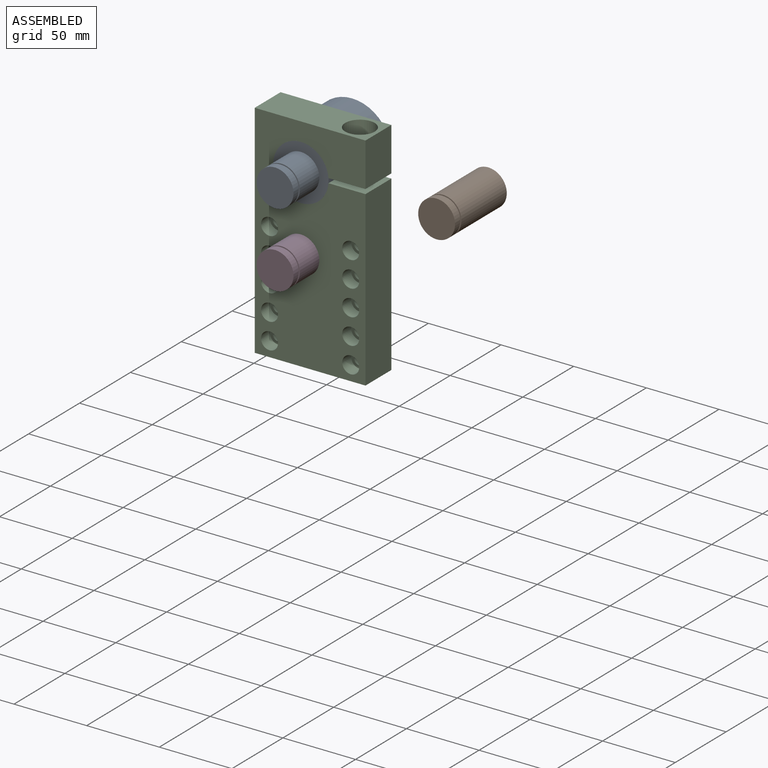
[diagram: assembled view]
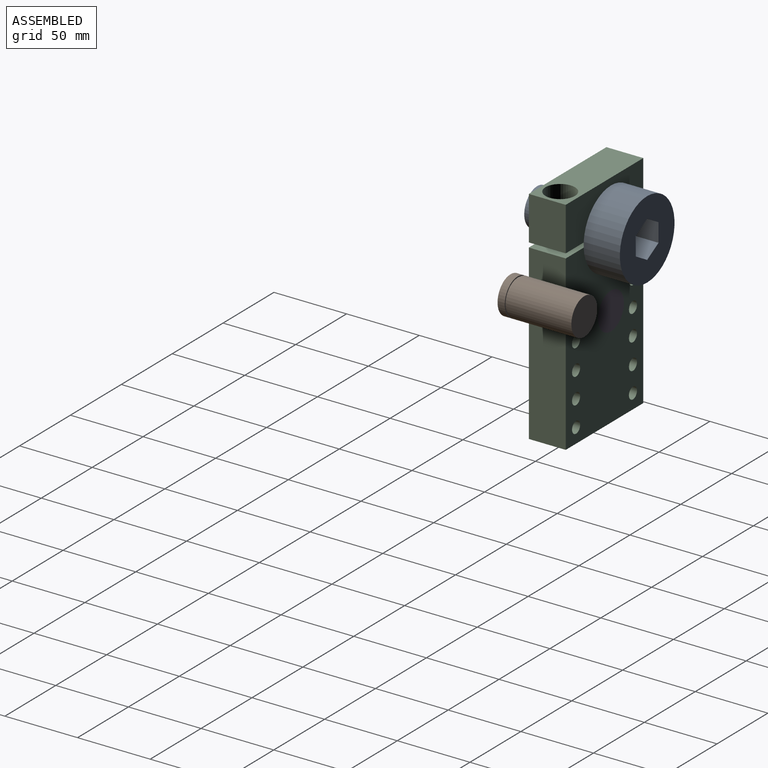
[diagram: assembled view, second angle]
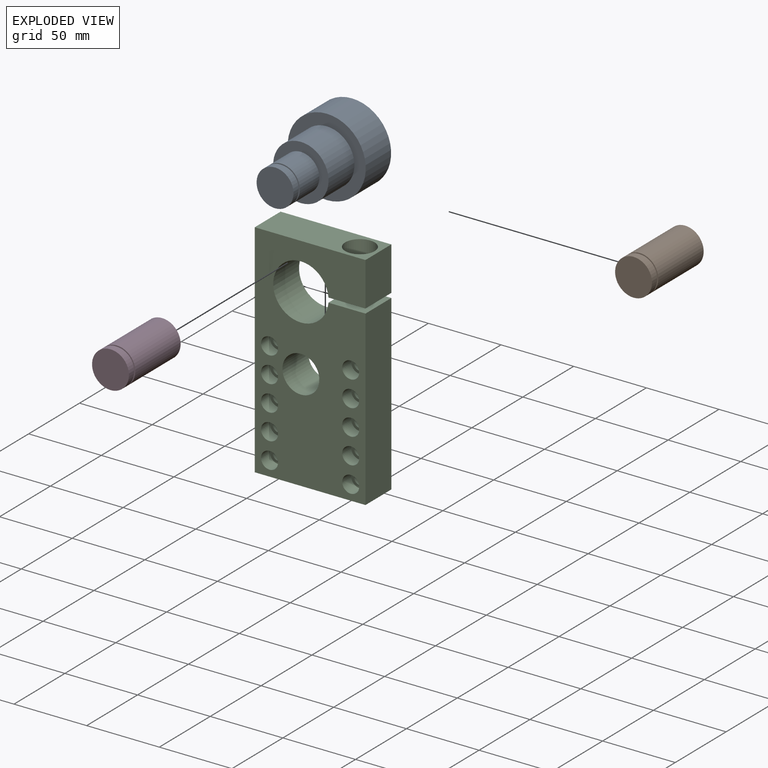
[diagram: exploded view]
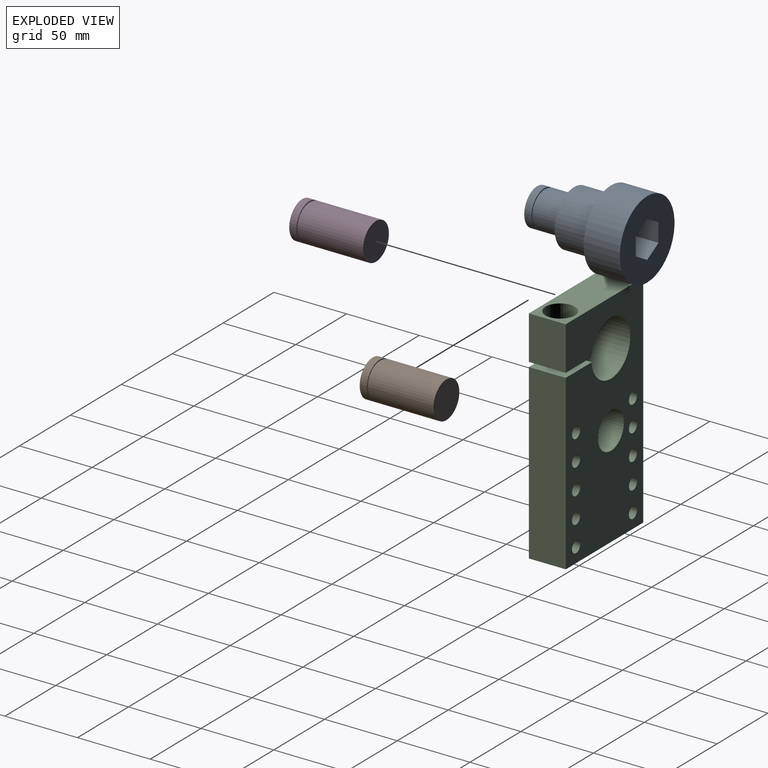
[diagram: exploded view, second angle]
ASSEMBLY  parts=3 mates=2
PART A: 18 faces, bbox 53.7x75.7x53.7 mm
  f0: cylinder r=26.87mm len=53.75mm, axis (0,-1,0), area 4207.3mm2, adj f1,f4
  f1: plane 53.75x53.75mm, normal (0,-1,0), area 1128.7mm2, adj f0,f2
  f2: cylinder r=19.05mm len=38.1mm, axis (0,-1,0), area 3040.2mm2, adj f1,f3
  f3: plane 38.1x38.1mm, normal (0,-1,0), area 633.4mm2, adj f2,f12
  f4: plane 53.75x53.75mm, normal (0,1,0), area 1841mm2, adj f0,f5,f6,f7,f8,f9,f10
  f5: plane 17.15x11.11mm, normal (0.5,0,0.87), area 220mm2, adj f4,f6,f10,f11
  f6: plane 17.15x12.83mm, normal (1,0,0), area 220mm2, adj f4,f5,f7,f11
  f7: plane 17.15x11.11mm, normal (0.5,0,-0.87), area 220mm2, adj f4,f6,f8,f11
  f8: plane 17.15x11.11mm, normal (-0.5,0,-0.87), area 220mm2, adj f4,f7,f9,f11
  f9: plane 17.15x12.83mm, normal (-1,0,0), area 220mm2, adj f4,f8,f10,f11
  f10: plane 17.15x11.11mm, normal (-0.5,0,0.87), area 220mm2, adj f4,f5,f9,f11
  f11: plane 25.66x22.23mm, normal (0,1,0), area 427.8mm2, adj f5,f6,f7,f8,f9,f10
  f12: cylinder r=12.7mm len=25.4mm, axis (0,1,0), area 1530.3mm2, adj f3,f13
  f13: plane 25.4x25.4mm, normal (0,-1,0), area 59mm2, adj f12,f14
  f14: cylinder r=11.94mm len=23.88mm, axis (0,1,0), area 95.3mm2, adj f13,f15
  f15: plane 25.4x25.4mm, normal (0,1,0), area 59mm2, adj f14,f16
  f16: cylinder r=12.7mm len=25.4mm, axis (0,1,0), area 395.2mm2, adj f15,f17
  f17: plane 25.4x25.4mm, normal (0,-1,0), area 506.7mm2, adj f16
PART B: 46 faces, bbox 76.2x25.4x152.4 mm
  f0: cylinder r=6.35mm len=16.19mm, axis (0,0,1), area 646.1mm2, adj f21,f45
  f1: cylinder r=3.97mm len=16.51mm, axis (0,-1,0), area 411.7mm2, adj f12,f43
  f2: cylinder r=3.97mm len=16.51mm, axis (0,-1,0), area 411.7mm2, adj f12,f41
  f3: cylinder r=3.97mm len=16.51mm, axis (0,-1,0), area 411.7mm2, adj f12,f39
  f4: cylinder r=3.97mm len=16.51mm, axis (0,-1,0), area 411.7mm2, adj f12,f37
  f5: cylinder r=3.97mm len=16.51mm, axis (0,-1,0), area 411.7mm2, adj f12,f35
  f6: cylinder r=3.97mm len=16.51mm, axis (0,-1,0), area 411.7mm2, adj f12,f33
  f7: cylinder r=3.97mm len=16.51mm, axis (0,-1,0), area 411.7mm2, adj f12,f31
  f8: cylinder r=3.97mm len=16.51mm, axis (0,-1,0), area 411.7mm2, adj f12,f29
  f9: cylinder r=3.97mm len=16.51mm, axis (0,-1,0), area 411.7mm2, adj f12,f27
  f10: cylinder r=3.97mm len=16.51mm, axis (0,-1,0), area 411.7mm2, adj f12,f25
  f11: plane 119.06x25.4mm, normal (1,0,0), area 3024.2mm2, adj f12,f13,f15,f20
  f12: plane 152.4x76.2mm, normal (0,1,0), area 9390.5mm2, adj f1,f2,f3,f4,f5,f6,f7,f8
  f13: plane 152.4x76.2mm, normal (0,-1,0), area 8813.2mm2, adj f11,f14,f15,f16,f17,f18,f19,f20
  f14: plane 152.4x25.4mm, normal (-1,0,0), area 3871mm2, adj f12,f13,f15,f17
  f15: plane 76.2x25.4mm, normal (0,0,-1), area 1935.5mm2, adj f11,f12,f13,f14
  f16: plane 30.16x25.4mm, normal (1,0,0), area 766.1mm2, adj f12,f13,f17,f21
  f17: plane 76.2x25.4mm, normal (0,0,1), area 1611.2mm2, adj f12,f13,f14,f16,f44
  f18: cylinder r=12.7mm len=25.4mm, axis (0,-1,0), area 2026.8mm2, adj f12,f13
  f19: cylinder r=19.05mm len=38.1mm, axis (0,-1,0), area 2959.5mm2, adj f12,f13,f20,f21
  f20: plane 25.47x25.4mm, normal (0,0,1), area 520.2mm2, adj f11,f12,f13,f19,f22
  f21: plane 25.47x25.4mm, normal (0,0,-1), area 520.2mm2, adj f0,f12,f13,f16,f19
  f22: cylinder r=6.35mm len=30.16mm, axis (0,0,1), area 1203.4mm2, adj f20,f23
  f23: plane 12.7x12.7mm, normal (0,0,1), area 126.7mm2, adj f22
  f24: cylinder r=5.84mm len=11.68mm, axis (0,-1,0), area 326.3mm2, adj f13,f25
  f25: plane 11.68x11.68mm, normal (0,-1,0), area 57.7mm2, adj f10,f24
  f26: cylinder r=5.84mm len=11.68mm, axis (0,-1,0), area 326.3mm2, adj f13,f27
  f27: plane 11.68x11.68mm, normal (0,-1,0), area 57.7mm2, adj f9,f26
  f28: cylinder r=5.84mm len=11.68mm, axis (0,-1,0), area 326.3mm2, adj f13,f29
  f29: plane 11.68x11.68mm, normal (0,-1,0), area 57.7mm2, adj f8,f28
  f30: cylinder r=5.84mm len=11.68mm, axis (0,-1,0), area 326.3mm2, adj f13,f31
  f31: plane 11.68x11.68mm, normal (0,-1,0), area 57.7mm2, adj f7,f30
  f32: cylinder r=5.84mm len=11.68mm, axis (0,-1,0), area 326.3mm2, adj f13,f33
  f33: plane 11.68x11.68mm, normal (0,-1,0), area 57.7mm2, adj f6,f32
  f34: cylinder r=5.84mm len=11.68mm, axis (0,-1,0), area 326.3mm2, adj f13,f35
  f35: plane 11.68x11.68mm, normal (0,-1,0), area 57.7mm2, adj f5,f34
  f36: cylinder r=5.84mm len=11.68mm, axis (0,-1,0), area 326.3mm2, adj f13,f37
  f37: plane 11.68x11.68mm, normal (0,-1,0), area 57.7mm2, adj f4,f36
  f38: cylinder r=5.84mm len=11.68mm, axis (0,-1,0), area 326.3mm2, adj f13,f39
  f39: plane 11.68x11.68mm, normal (0,-1,0), area 57.7mm2, adj f3,f38
  f40: cylinder r=5.84mm len=11.68mm, axis (0,-1,0), area 326.3mm2, adj f13,f41
  f41: plane 11.68x11.68mm, normal (0,-1,0), area 57.7mm2, adj f2,f40
  f42: cylinder r=5.84mm len=11.68mm, axis (0,-1,0), area 326.3mm2, adj f13,f43
  f43: plane 11.68x11.68mm, normal (0,-1,0), area 57.7mm2, adj f1,f42
  f44: cylinder r=10.16mm len=20.32mm, axis (0,0,1), area 891.8mm2, adj f17,f45
  f45: plane 20.32x20.32mm, normal (0,0,1), area 197.6mm2, adj f0,f44
PART C: 7 faces, bbox 25.4x50.8x25.4 mm
  f0: plane 25.4x25.4mm, normal (0,1,0), area 506.7mm2, adj f1
  f1: cylinder r=12.7mm len=44.58mm, axis (0,-1,0), area 3557.1mm2, adj f0,f2
  f2: plane 25.4x25.4mm, normal (0,-1,0), area 59mm2, adj f1,f3
  f3: cylinder r=11.94mm len=23.88mm, axis (0,-1,0), area 95.3mm2, adj f2,f4
  f4: plane 25.4x25.4mm, normal (0,1,0), area 59mm2, adj f3,f5
  f5: cylinder r=12.7mm len=25.4mm, axis (0,-1,0), area 395.2mm2, adj f4,f6
  f6: plane 25.4x25.4mm, normal (0,-1,0), area 506.7mm2, adj f5
PLACE A t=(-80.38,0.75,32.64)mm
PLACE B t=(-112.13,-24.65,-88.01)mm
PLACE C t=(-80.38,0.75,-18.55)mm
MATE fastened B.f18 <-> C.f1  axis (0,1,0) through (-80.38,0.75,-18.55)mm
MATE fastened B.f19 <-> A.f0  axis (0,-1,0) through (-80.38,-24.65,32.64)mm
